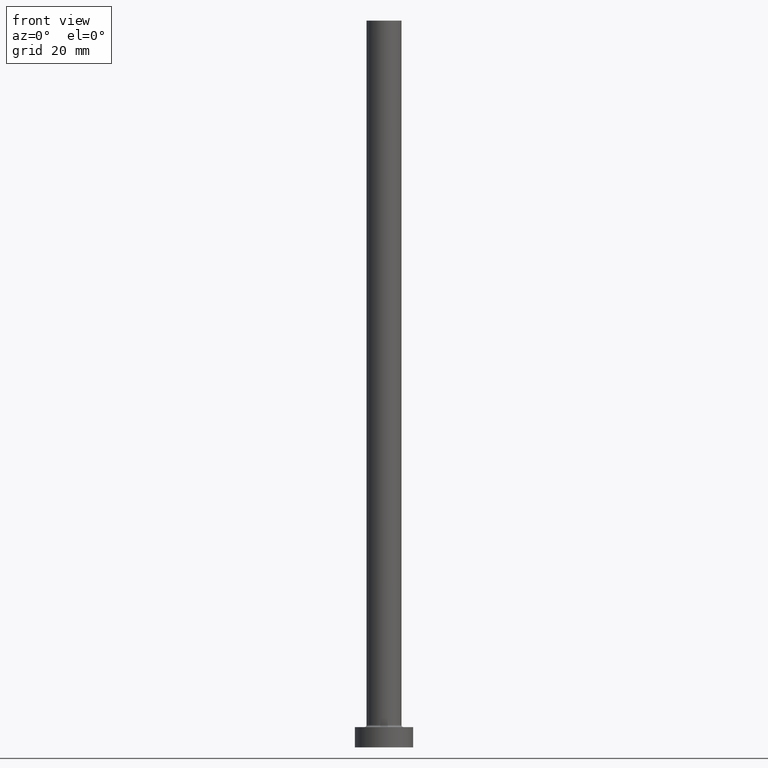
[diagram: clean part render]
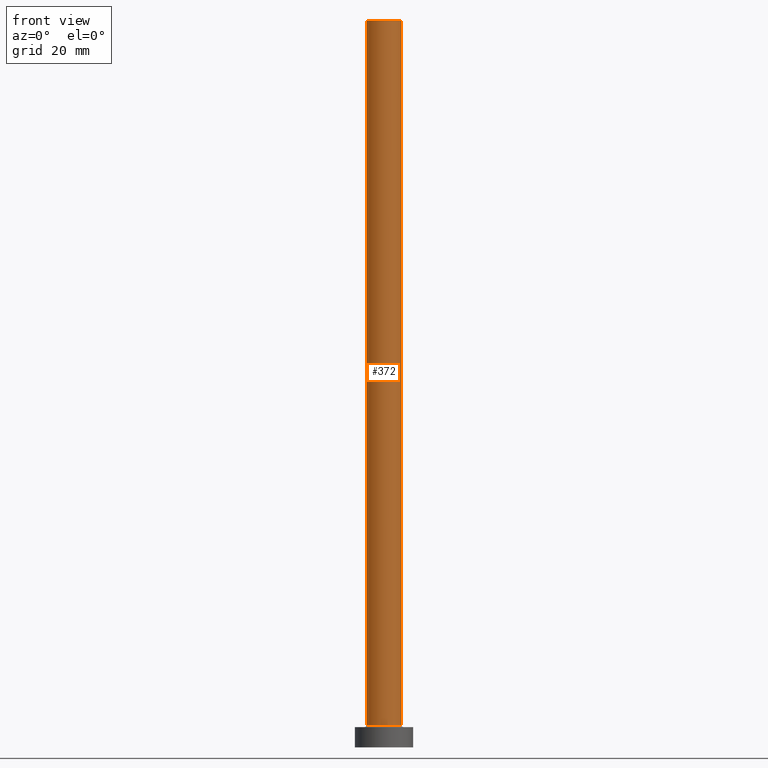
[diagram: same view with one face highlighted and labeled with its STEP entity id]
A machine part, front view. The second image highlights one B-rep face of the part: STEP entity #372.
In plain terms, the highlighted cylindrical surface (edge-blend (fillet) strip) has radius 6 mm, axis along (-0, -0, -1).
Its self-contained STEP definition (entity closure, byte-faithful):
#1 = DIRECTION ( 'NONE',  ( -1.000000000000000000, 0.000000000000000000, 0.000000000000000000 ) ) ;
#12 = DIRECTION ( 'NONE',  ( 1.000000000000000000, 0.000000000000000000, 0.000000000000000000 ) ) ;
#24 = CARTESIAN_POINT ( 'NONE',  ( -6.000000000000000888, 0.000000000000000000, 250.0000000000000000 ) ) ;
#27 = LINE ( 'NONE', #64, #408 ) ;
#42 = CARTESIAN_POINT ( 'NONE',  ( 0.000000000000000000, 0.000000000000000000, 7.700000000000012612 ) ) ;
#44 = FACE_OUTER_BOUND ( 'NONE', #131, .T. ) ;
#64 = CARTESIAN_POINT ( 'NONE',  ( -6.000000000000000888, 0.000000000000000000, 250.0000000000000000 ) ) ;
#83 = VERTEX_POINT ( 'NONE', #267 ) ;
#104 = DIRECTION ( 'NONE',  ( 0.000000000000000000, 0.000000000000000000, 1.000000000000000000 ) ) ;
#124 = EDGE_CURVE ( 'NONE', #203, #212, #27, .T. ) ;
#131 = EDGE_LOOP ( 'NONE', ( #406, #354, #160, #247 ) ) ;
#144 = CARTESIAN_POINT ( 'NONE',  ( 0.000000000000000000, 0.000000000000000000, 250.0000000000000000 ) ) ;
#157 = EDGE_CURVE ( 'NONE', #254, #83, #351, .T. ) ;
#160 = ORIENTED_EDGE ( 'NONE', *, *, #124, .T. ) ;
#170 = CARTESIAN_POINT ( 'NONE',  ( 6.000000000000000888, 7.347880794884120722E-16, 250.0000000000000000 ) ) ;
#177 = DIRECTION ( 'NONE',  ( -0.000000000000000000, -0.000000000000000000, -1.000000000000000000 ) ) ;
#192 = AXIS2_PLACEMENT_3D ( 'NONE', #144, #177, #1 ) ;
#203 = VERTEX_POINT ( 'NONE', #24 ) ;
#212 = VERTEX_POINT ( 'NONE', #458 ) ;
#222 = CIRCLE ( 'NONE', #459, 6.000000000000000888 ) ;
#226 = DIRECTION ( 'NONE',  ( 0.000000000000000000, 0.000000000000000000, 1.000000000000000000 ) ) ;
#247 = ORIENTED_EDGE ( 'NONE', *, *, #261, .T. ) ;
#254 = VERTEX_POINT ( 'NONE', #364 ) ;
#261 = EDGE_CURVE ( 'NONE', #212, #83, #432, .T. ) ;
#267 = CARTESIAN_POINT ( 'NONE',  ( 6.000000000000000888, 7.347880794884120722E-16, 7.700000000000012612 ) ) ;
#268 = VECTOR ( 'NONE', #454, 1000.000000000000000 ) ;
#276 = DIRECTION ( 'NONE',  ( -0.000000000000000000, -0.000000000000000000, -1.000000000000000000 ) ) ;
#296 = AXIS2_PLACEMENT_3D ( 'NONE', #42, #226, #368 ) ;
#301 = EDGE_CURVE ( 'NONE', #203, #254, #222, .T. ) ;
#351 = LINE ( 'NONE', #170, #268 ) ;
#354 = ORIENTED_EDGE ( 'NONE', *, *, #301, .F. ) ;
#359 = CYLINDRICAL_SURFACE ( 'NONE', #192, 6.000000000000000888 ) ;
#364 = CARTESIAN_POINT ( 'NONE',  ( 6.000000000000000888, 7.347880794884120722E-16, 250.0000000000000000 ) ) ;
#368 = DIRECTION ( 'NONE',  ( 1.000000000000000000, 0.000000000000000000, 0.000000000000000000 ) ) ;
#372 = ADVANCED_FACE ( 'NONE', ( #44 ), #359, .T. ) ;
#403 = CARTESIAN_POINT ( 'NONE',  ( 0.000000000000000000, 0.000000000000000000, 250.0000000000000000 ) ) ;
#406 = ORIENTED_EDGE ( 'NONE', *, *, #157, .F. ) ;
#408 = VECTOR ( 'NONE', #276, 1000.000000000000000 ) ;
#432 = CIRCLE ( 'NONE', #296, 6.000000000000000888 ) ;
#454 = DIRECTION ( 'NONE',  ( -0.000000000000000000, -0.000000000000000000, -1.000000000000000000 ) ) ;
#458 = CARTESIAN_POINT ( 'NONE',  ( -6.000000000000000888, 0.000000000000000000, 7.700000000000012612 ) ) ;
#459 = AXIS2_PLACEMENT_3D ( 'NONE', #403, #104, #12 ) ;